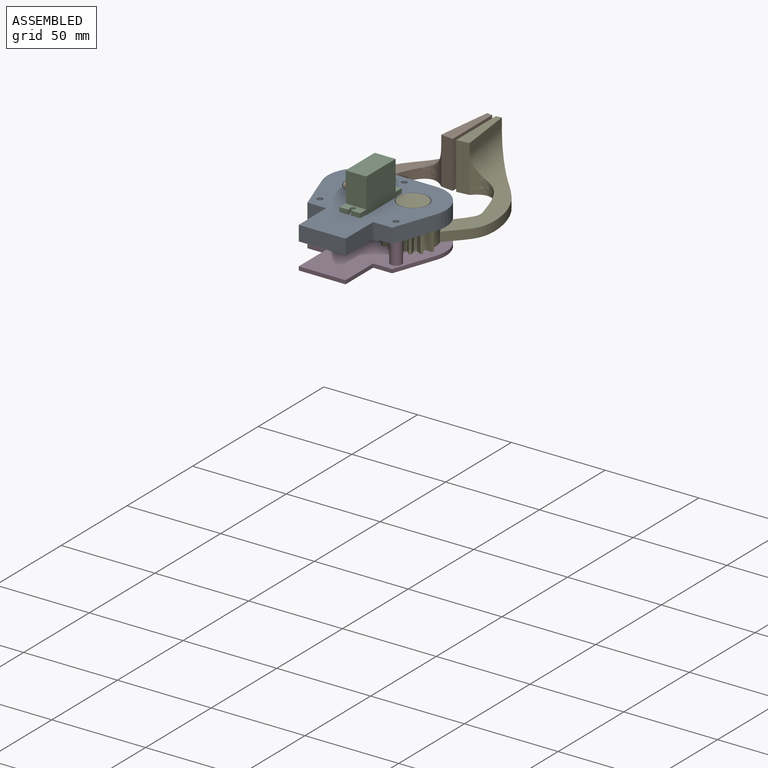
[diagram: assembled view]
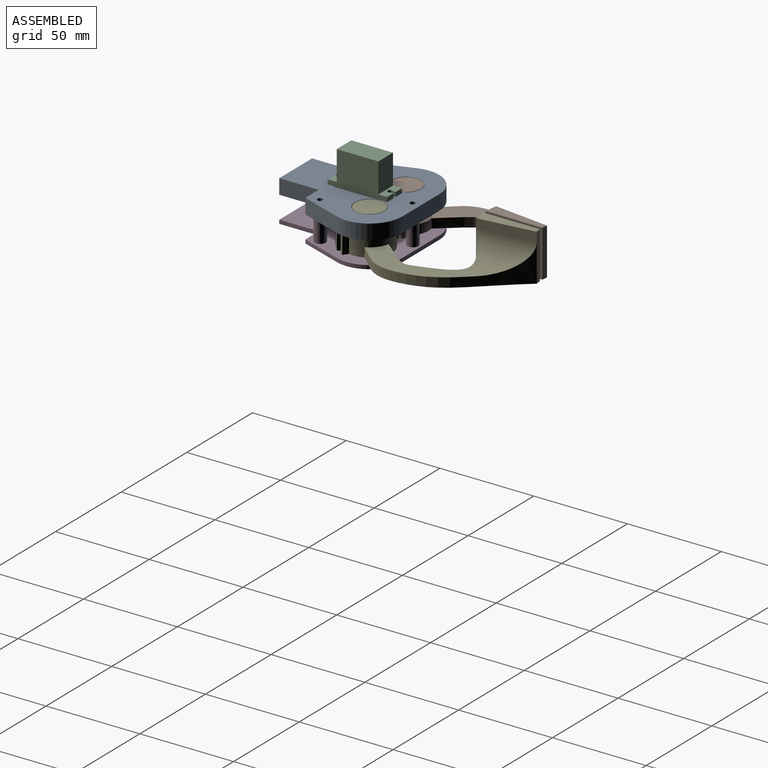
[diagram: assembled view, second angle]
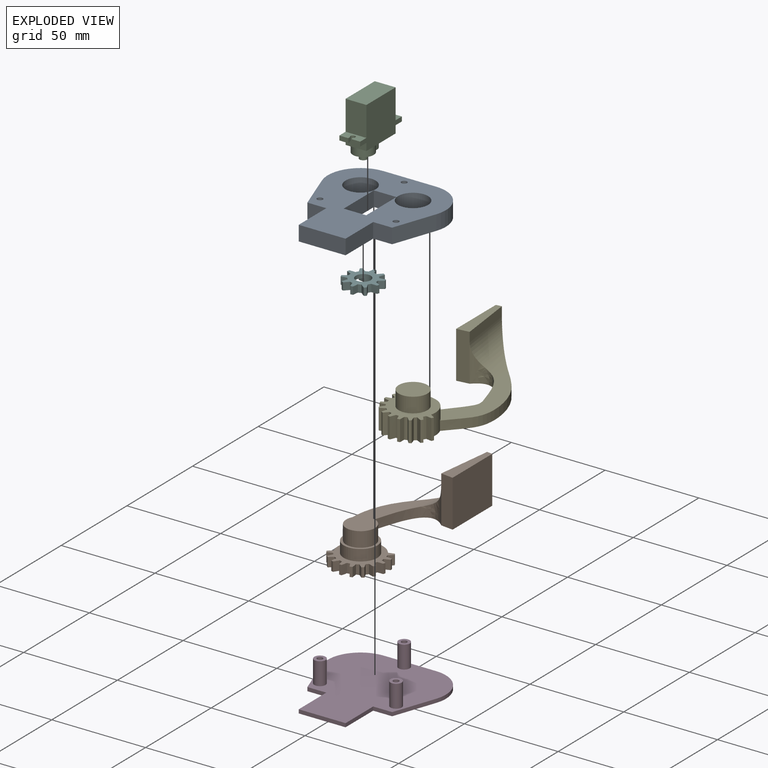
[diagram: exploded view]
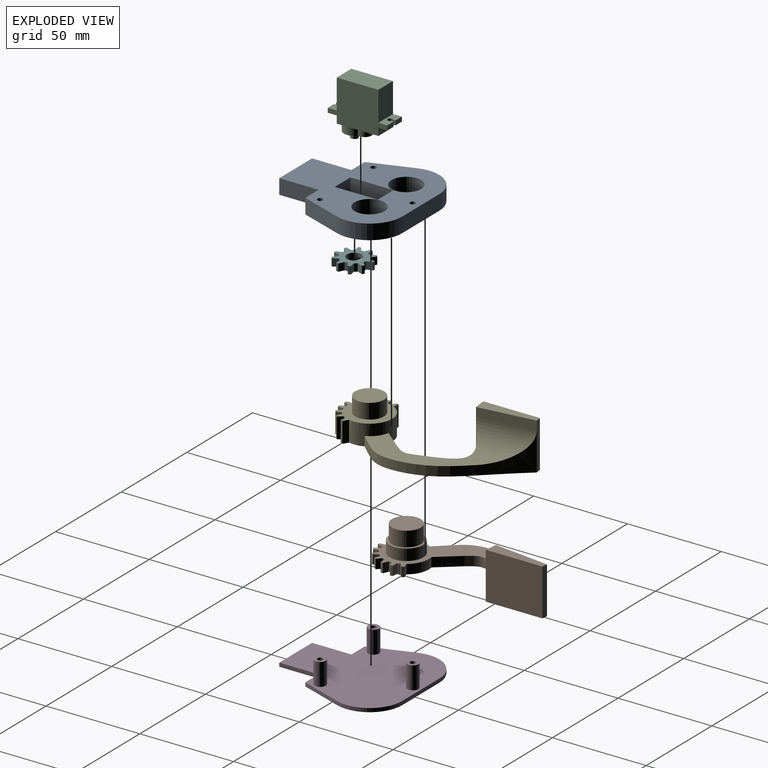
[diagram: exploded view, second angle]
ASSEMBLY  parts=6 mates=5
PART A: 21 faces, bbox 63x66.7x8 mm
  f0: plane 12x8mm, normal (0,1,0), area 96mm2, adj f1,f14,f19,f20
  f1: plane 23x8mm, normal (1,0,0), area 184mm2, adj f0,f2,f19,f20
  f2: plane 12x8mm, normal (0,-1,0), area 96mm2, adj f1,f14,f19,f20
  f3: cylinder r=17.5mm len=23.31mm, axis (0,0,-1), area 267.3mm2, adj f4,f17,f19,f20
  f4: plane 28x8mm, normal (0,1,0), area 224mm2, adj f3,f5,f19,f20
  f5: cylinder r=17.5mm len=23.31mm, axis (0,0,-1), area 267.3mm2, adj f4,f6,f19,f20
  f6: plane 22.43x8mm, normal (-0.94,-0.33,0), area 190.3mm2, adj f5,f7,f19,f20
  f7: plane 10.1x8mm, normal (0,-1,0), area 80.8mm2, adj f6,f8,f19,f20
  f8: plane 21x8mm, normal (-1,0,0), area 168mm2, adj f7,f9,f19,f20
  f9: plane 25x8mm, normal (0,-1,0), area 200mm2, adj f8,f10,f19,f20
  f10: plane 21x8mm, normal (1,0,0), area 168mm2, adj f9,f11,f19,f20
  f11: plane 10.1x8mm, normal (0,-1,0), area 80.8mm2, adj f10,f17,f19,f20
  f12: cylinder r=1.5mm len=8mm, axis (0,0,-1), area 75.4mm2, adj f19,f20
  f13: cylinder r=1.5mm len=8mm, axis (0,0,-1), area 75.4mm2, adj f19,f20
  f14: plane 23x8mm, normal (-1,0,0), area 184mm2, adj f0,f2,f19,f20
  f15: cylinder r=8mm len=16mm, axis (0,0,-1), area 402.1mm2, adj f19,f20
  f16: cylinder r=8mm len=16mm, axis (0,0,-1), area 402.1mm2, adj f19,f20
  f17: plane 22.43x8mm, normal (0.94,-0.33,0), area 190.3mm2, adj f3,f11,f19,f20
  f18: cylinder r=1.5mm len=8mm, axis (0,0,-1), area 75.4mm2, adj f19,f20
  f19: plane 66.75x63mm, normal (0,0,1), area 2350.7mm2, adj f0,f1,f2,f3,f4,f5,f6,f7
  f20: plane 66.75x63mm, normal (0,0,-1), area 2350.7mm2, adj f0,f1,f2,f3,f4,f5,f6,f7
PART B: 55 faces, bbox 43.4x97.7x25 mm
  f0: cylinder r=12mm len=12.64mm, axis (0,0,-1), area 69.1mm2, adj f12,f14,f15,f48
  f1: cylinder r=12mm len=9.49mm, axis (0,0,-1), area 49.1mm2, adj f14,f15,f39,f47
  f2: cylinder r=12mm len=5mm, axis (0,0,-1), area 7.5mm2, adj f14,f15,f36,f38
  f3: cylinder r=12mm len=5mm, axis (0,0,-1), area 7.5mm2, adj f14,f15,f33,f35
  f4: cylinder r=12mm len=5mm, axis (0,0,-1), area 7.5mm2, adj f14,f15,f30,f32
  f5: cylinder r=12mm len=5mm, axis (0,0,-1), area 7.5mm2, adj f14,f15,f27,f29
  f6: cylinder r=12mm len=5mm, axis (0,0,-1), area 7.5mm2, adj f14,f15,f24,f26
  f7: cylinder r=12mm len=5mm, axis (0,0,-1), area 7.5mm2, adj f14,f15,f21,f23
  f8: cylinder r=12mm len=5mm, axis (0,0,-1), area 7.5mm2, adj f14,f15,f18,f20
  f9: cylinder r=12mm len=5mm, axis (0,0,-1), area 7.5mm2, adj f14,f15,f17,f40
  f10: extruded ~5x2.34mm, area 15.7mm2, adj f11,f13,f14,f15
  f11: cylinder r=15mm len=5mm, axis (0,0,-1), area 6.7mm2, adj f10,f12,f14,f15
  f12: extruded ~5x2.87mm, area 15.7mm2, adj f0,f11,f14,f15
  f13: cylinder r=12mm len=5mm, axis (0,0,-1), area 7.5mm2, adj f10,f14,f15,f42
  f14: plane 76.49x43.07mm, normal (0,0,1), area 775.7mm2, adj f0,f1,f2,f3,f4,f5,f6,f7
  f15: plane 97.67x43.44mm, normal (0,0,-1), area 1445.1mm2, adj f0,f1,f2,f3,f4,f5,f6,f7
  f16: cylinder r=15mm len=5mm, axis (0,0,-1), area 6.7mm2, adj f14,f15,f17,f18
  f17: extruded ~5x3.01mm, area 15.7mm2, adj f9,f14,f15,f16
  f18: extruded ~5x3.1mm, area 15.7mm2, adj f8,f14,f15,f16
  f19: cylinder r=15mm len=5mm, axis (0,0,-1), area 6.7mm2, adj f14,f15,f20,f21
  f20: extruded ~5x2.53mm, area 15.7mm2, adj f8,f14,f15,f19
  f21: extruded ~5x3.07mm, area 15.7mm2, adj f7,f14,f15,f19
  f22: cylinder r=15mm len=5mm, axis (0,0,-1), area 6.7mm2, adj f14,f15,f23,f24
  f23: extruded ~5x2.6mm, area 15.7mm2, adj f7,f14,f15,f22
  f24: extruded ~5x2.66mm, area 15.7mm2, adj f6,f14,f15,f22
  f25: cylinder r=15mm len=5mm, axis (0,0,-1), area 6.7mm2, adj f14,f15,f26,f27
  f26: extruded ~5x3.04mm, area 15.7mm2, adj f6,f14,f15,f25
  f27: extruded ~5x2.46mm, area 15.7mm2, adj f5,f14,f15,f25
  f28: cylinder r=15mm len=5mm, axis (0,0,-1), area 6.7mm2, adj f14,f15,f29,f30
  f29: extruded ~5x3.11mm, area 15.7mm2, adj f5,f14,f15,f28
  f30: extruded ~5x2.97mm, area 15.7mm2, adj f4,f14,f15,f28
  f31: cylinder r=15mm len=5mm, axis (0,0,-1), area 6.7mm2, adj f14,f15,f32,f33
  f32: extruded ~5x2.81mm, area 15.7mm2, adj f4,f14,f15,f31
  f33: extruded ~5x3.13mm, area 15.7mm2, adj f3,f14,f15,f31
  f34: cylinder r=15mm len=5mm, axis (0,0,-1), area 6.7mm2, adj f14,f15,f35,f36
  f35: extruded ~5x2.26mm, area 15.7mm2, adj f3,f14,f15,f34
  f36: extruded ~5x2.91mm, area 15.7mm2, adj f2,f14,f15,f34
  f37: cylinder r=15mm len=5mm, axis (0,0,-1), area 6.7mm2, adj f14,f15,f38,f39
  f38: extruded ~5x2.87mm, area 15.7mm2, adj f2,f14,f15,f37
  f39: extruded ~5x2.34mm, area 15.7mm2, adj f1,f14,f15,f37
  f40: extruded ~5x2.76mm, area 15.7mm2, adj f9,f14,f15,f41
  f41: cylinder r=15mm len=5mm, axis (0,0,-1), area 6.7mm2, adj f14,f15,f40,f42
  f42: extruded ~5x3.12mm, area 15.7mm2, adj f13,f14,f15,f41
  f43: cylinder r=9mm len=18mm, axis (0,0,-1), area 339.3mm2, adj f14,f44
  f44: plane 18x18mm, normal (0,0,1), area 68.2mm2, adj f43,f46
  f45: plane 15.4x15.4mm, normal (0,0,1), area 186.3mm2, adj f46
  f46: cylinder r=7.7mm len=15.4mm, axis (0,0,-1), area 387mm2, adj f44,f45
  f47: extruded ~79.09x27.5mm, area 552.4mm2, adj f1,f14,f15,f51,f54
  f48: extruded ~44.07x20mm, area 364.9mm2, adj f0,f14,f15,f52,f54
  f49: plane 30x5mm, normal (-1,0,0), area 150mm2, adj f51,f52,f53,f54
  f50: plane 30x25mm, normal (0.99,0.12,0), area 755.6mm2, adj f15,f51,f52,f53
  f51: plane 25x3mm, normal (0,1,0), area 75mm2, adj f15,f47,f49,f50,f53
  f52: plane 25x6.68mm, normal (0,-1,0), area 167.1mm2, adj f15,f48,f49,f50,f53
  f53: plane 30x6.68mm, normal (0,0,1), area 145.3mm2, adj f49,f50,f51,f52
  f54: cylinder r=15mm len=36.33mm, axis (0,-1,0), area 493.9mm2, adj f14,f47,f48,f49
PART C: 31 faces, bbox 11.1x31.8x29.4 mm
  f0: plane 4.79x2.38mm, normal (0,1,0), area 11.4mm2, adj f2,f7,f17,f28
  f1: plane 4.79x2.38mm, normal (0,-1,0), area 11.4mm2, adj f12,f14,f17,f27
  f2: plane 11.11x4.76mm, normal (0,0,1), area 46mm2, adj f0,f8,f9,f16,f17,f28,f29,f30
  f3: plane 16.67x11.11mm, normal (0,0,1), area 113.8mm2, adj f9,f16,f17,f18,f19,f20,f21
  f4: plane 5.56x5.56mm, normal (0,0,1), area 6.6mm2, adj f11,f17,f19
  f5: plane 22.23x11.11mm, normal (0,0,-1), area 247mm2, adj f6,f15,f16,f17
  f6: plane 15.88x11.11mm, normal (0,1,0), area 176.4mm2, adj f5,f7,f16,f17
  f7: plane 11.11x4.76mm, normal (0,0,-1), area 46mm2, adj f0,f6,f8,f16,f17,f28,f29,f30
  f8: plane 4.79x2.38mm, normal (0,1,0), area 11.4mm2, adj f2,f7,f16,f30
  f9: plane 11.11x3.97mm, normal (0,1,0), area 44.1mm2, adj f2,f3,f16,f17
  f10: plane 5.56x5.56mm, normal (0,0,1), area 6.6mm2, adj f11,f16,f19
  f11: plane 11.11x3.97mm, normal (0,-1,0), area 44.1mm2, adj f4,f10,f12,f16,f17
  f12: plane 11.11x4.76mm, normal (0,0,1), area 46mm2, adj f1,f11,f13,f16,f17,f25,f26,f27
  f13: plane 4.79x2.38mm, normal (0,-1,0), area 11.4mm2, adj f12,f14,f16,f26
  f14: plane 11.11x4.76mm, normal (0,0,-1), area 46mm2, adj f1,f13,f15,f16,f17,f25,f26,f27
  f15: plane 15.88x11.11mm, normal (0,-1,0), area 176.4mm2, adj f5,f14,f16,f17
  f16: plane 31.75x22.23mm, normal (1,0,0), area 516.6mm2, adj f2,f3,f5,f6,f7,f8,f9,f10
  f17: plane 31.75x22.23mm, normal (-1,0,0), area 516.6mm2, adj f0,f1,f2,f3,f4,f5,f6,f7
  f18: plane 3.97x1.3mm, normal (-1,0,0), area 5.2mm2, adj f3,f19,f21,f22
  f19: cylinder r=5.56mm len=11.11mm, axis (0,0,-1), area 107.8mm2, adj f3,f4,f10,f18,f20,f22
  f20: plane 3.97x1.3mm, normal (1,0,0), area 5.2mm2, adj f3,f19,f21,f22
  f21: cylinder r=3.57mm len=7.14mm, axis (0,0,-1), area 44.5mm2, adj f3,f18,f20,f22
  f22: plane 14.68x11.11mm, normal (0,0,1), area 107.6mm2, adj f18,f19,f20,f21,f23
  f23: cylinder r=1.98mm len=3.97mm, axis (0,0,-1), area 39.6mm2, adj f22,f24
  f24: plane 3.97x3.97mm, normal (0,0,1), area 12.4mm2, adj f23
  f25: cylinder r=1.27mm len=2.55mm, axis (0,0,1), area 15.2mm2, adj f12,f14,f26,f27
  f26: plane 2.38x1.36mm, normal (-1,0,0), area 3.2mm2, adj f12,f13,f14,f25
  f27: plane 2.38x1.36mm, normal (1,0,0), area 3.2mm2, adj f1,f12,f14,f25
  f28: plane 2.38x1.36mm, normal (1,0,0), area 3.2mm2, adj f0,f2,f7,f29
  f29: cylinder r=1.27mm len=2.55mm, axis (0,0,1), area 15.2mm2, adj f2,f7,f28,f30
  f30: plane 2.38x1.36mm, normal (-1,0,0), area 3.2mm2, adj f2,f7,f8,f29
PART D: 21 faces, bbox 63x66.7x14 mm
  f0: plane 28x2mm, normal (0,1,0), area 56mm2, adj f1,f9,f10,f11
  f1: cylinder r=17.5mm len=23.31mm, axis (0,0,1), area 66.8mm2, adj f0,f2,f10,f11
  f2: plane 22.43x7.9mm, normal (-0.94,-0.33,0), area 47.6mm2, adj f1,f3,f10,f11
  f3: plane 10.1x2mm, normal (0,-1,0), area 20.2mm2, adj f2,f4,f10,f11
  f4: plane 21x2mm, normal (-1,0,0), area 42mm2, adj f3,f5,f10,f11
  f5: plane 25x2mm, normal (0,-1,0), area 50mm2, adj f4,f6,f10,f11
  f6: plane 21x2mm, normal (1,0,0), area 42mm2, adj f5,f7,f10,f11
  f7: plane 10.1x2mm, normal (0,-1,0), area 20.2mm2, adj f6,f8,f10,f11
  f8: plane 22.43x7.9mm, normal (0.94,-0.33,0), area 47.6mm2, adj f7,f9,f10,f11
  f9: cylinder r=17.5mm len=23.31mm, axis (0,0,1), area 66.8mm2, adj f0,f8,f10,f11
  f10: plane 66.75x63mm, normal (0,0,-1), area 3028.8mm2, adj f0,f1,f2,f3,f4,f5,f6,f7
  f11: plane 66.75x63mm, normal (0,0,1), area 2965.2mm2, adj f0,f1,f2,f3,f4,f5,f6,f7
  f12: cylinder r=1.5mm len=14mm, axis (0,0,1), area 131.9mm2, adj f10,f14
  f13: cylinder r=3mm len=12mm, axis (0,0,1), area 226.2mm2, adj f11,f14
  f14: plane 6x6mm, normal (0,0,1), area 21.2mm2, adj f12,f13
  f15: cylinder r=1.5mm len=14mm, axis (0,0,1), area 131.9mm2, adj f10,f17
  f16: cylinder r=3mm len=12mm, axis (0,0,1), area 226.2mm2, adj f11,f17
  f17: plane 6x6mm, normal (0,0,1), area 21.2mm2, adj f15,f16
  f18: cylinder r=1.5mm len=14mm, axis (0,0,1), area 131.9mm2, adj f10,f20
  f19: cylinder r=3mm len=12mm, axis (0,0,1), area 226.2mm2, adj f11,f20
  f20: plane 6x6mm, normal (0,0,1), area 21.2mm2, adj f18,f19
PART E: 53 faces, bbox 43.4x97.7x25 mm
  f0: cylinder r=12mm len=22.02mm, axis (0,0,-1), area 328.2mm2, adj f11,f13,f14,f19,f44,f45,f46
  f1: cylinder r=12mm len=11mm, axis (0,0,-1), area 16.6mm2, adj f13,f14,f20,f23
  f2: cylinder r=12mm len=11mm, axis (0,0,-1), area 16.6mm2, adj f13,f14,f22,f26
  f3: cylinder r=12mm len=11mm, axis (0,0,-1), area 16.6mm2, adj f13,f14,f25,f29
  f4: cylinder r=12mm len=11mm, axis (0,0,-1), area 16.6mm2, adj f13,f14,f28,f32
  f5: cylinder r=12mm len=11mm, axis (0,0,-1), area 16.6mm2, adj f13,f14,f31,f35
  f6: cylinder r=12mm len=11mm, axis (0,0,-1), area 16.6mm2, adj f13,f14,f34,f38
  f7: cylinder r=12mm len=11mm, axis (0,0,-1), area 16.6mm2, adj f13,f14,f37,f39
  f8: cylinder r=12mm len=11mm, axis (0,0,-1), area 16.6mm2, adj f13,f14,f17,f40
  f9: cylinder r=12mm len=11mm, axis (0,0,-1), area 16.6mm2, adj f10,f13,f14,f16
  f10: extruded ~11x2.42mm, area 34.4mm2, adj f9,f12,f13,f14
  f11: extruded ~11x3.03mm, area 34.4mm2, adj f0,f12,f13,f14
  f12: cylinder r=15mm len=11mm, axis (0,0,-1), area 14.8mm2, adj f10,f11,f13,f14
  f13: plane 28.7x27.04mm, normal (0,0,1), area 327.2mm2, adj f0,f1,f2,f3,f4,f5,f6,f7
  f14: plane 97.7x43.4mm, normal (0,0,-1), area 1445.1mm2, adj f0,f1,f2,f3,f4,f5,f6,f7
  f15: cylinder r=15mm len=11mm, axis (0,0,-1), area 14.8mm2, adj f13,f14,f16,f17
  f16: extruded ~11x3.12mm, area 34.4mm2, adj f9,f13,f14,f15
  f17: extruded ~11x2.96mm, area 34.4mm2, adj f8,f13,f14,f15
  f18: cylinder r=15mm len=11mm, axis (0,0,-1), area 14.8mm2, adj f13,f14,f19,f20
  f19: extruded ~11x2.42mm, area 34.4mm2, adj f0,f13,f14,f18
  f20: extruded ~11x3.03mm, area 34.4mm2, adj f1,f13,f14,f18
  f21: cylinder r=15mm len=11mm, axis (0,0,-1), area 14.8mm2, adj f13,f14,f22,f23
  f22: extruded ~11x2.57mm, area 34.4mm2, adj f2,f13,f14,f21
  f23: extruded ~11x2.69mm, area 34.4mm2, adj f1,f13,f14,f21
  f24: cylinder r=15mm len=11mm, axis (0,0,-1), area 14.8mm2, adj f13,f14,f25,f26
  f25: extruded ~11x2.56mm, area 34.4mm2, adj f3,f13,f14,f24
  f26: extruded ~11x3.08mm, area 34.4mm2, adj f2,f13,f14,f24
  f27: cylinder r=15mm len=11mm, axis (0,0,-1), area 14.8mm2, adj f13,f14,f28,f29
  f28: extruded ~11x3.02mm, area 34.4mm2, adj f4,f13,f14,f27
  f29: extruded ~11x3.09mm, area 34.4mm2, adj f3,f13,f14,f27
  f30: cylinder r=15mm len=11mm, axis (0,0,-1), area 14.8mm2, adj f13,f14,f31,f32
  f31: extruded ~11x3.12mm, area 34.4mm2, adj f5,f13,f14,f30
  f32: extruded ~11x2.73mm, area 34.4mm2, adj f4,f13,f14,f30
  f33: cylinder r=15mm len=11mm, axis (0,0,-1), area 14.8mm2, adj f13,f14,f34,f35
  f34: extruded ~11x2.84mm, area 34.4mm2, adj f6,f13,f14,f33
  f35: extruded ~11x2.37mm, area 34.4mm2, adj f5,f13,f14,f33
  f36: cylinder r=15mm len=11mm, axis (0,0,-1), area 14.8mm2, adj f13,f14,f37,f38
  f37: extruded ~11x2.22mm, area 34.4mm2, adj f7,f13,f14,f36
  f38: extruded ~11x2.93mm, area 34.4mm2, adj f6,f13,f14,f36
  f39: extruded ~11x3.13mm, area 34.4mm2, adj f7,f13,f14,f41
  f40: extruded ~11x2.83mm, area 34.4mm2, adj f8,f13,f14,f41
  f41: cylinder r=15mm len=11mm, axis (0,0,-1), area 14.8mm2, adj f13,f14,f39,f40
  f42: cylinder r=7.7mm len=15.4mm, axis (0,0,-1), area 387mm2, adj f13,f43
  f43: plane 15.4x15.4mm, normal (0,0,1), area 186.3mm2, adj f42
  f44: extruded ~44.07x20mm, area 365mm2, adj f0,f14,f46,f48,f52
  f45: extruded ~79.09x27.5mm, area 552.4mm2, adj f0,f14,f46,f49,f52
  f46: plane 58.43x24.66mm, normal (0,0,1), area 516.6mm2, adj f0,f44,f45,f52
  f47: plane 30x5mm, normal (-1,0,0), area 150mm2, adj f48,f49,f51,f52
  f48: plane 25x6.68mm, normal (0,1,0), area 167.1mm2, adj f14,f44,f47,f50,f51
  f49: plane 25x3mm, normal (0,-1,0), area 75mm2, adj f14,f45,f47,f50,f51
  f50: plane 30x25mm, normal (0.99,-0.12,0), area 755.6mm2, adj f14,f48,f49,f51
  f51: plane 30x6.68mm, normal (0,0,1), area 145.3mm2, adj f47,f48,f49,f50
  f52: cylinder r=15mm len=36.33mm, axis (0,-1,0), area 494mm2, adj f44,f45,f46,f47
PART F: 46 faces, bbox 19.5x20x4 mm
  f0: cylinder r=7mm len=4mm, axis (0,0,-1), area 3.5mm2, adj f2,f5,f18,f38,f44,f45
  f1: cylinder r=4mm len=8mm, axis (0,0,-1), area 87.4mm2, adj f2,f18,f43,f44,f45
  f2: plane 19.49x18.54mm, normal (0,0,1), area 141.3mm2, adj f0,f1,f6,f7,f8,f9,f10,f11
  f3: cylinder r=10mm len=2mm, axis (0,0,-1), area 2.7mm2, adj f4,f5,f18,f45
  f4: extruded ~3.11x2mm, area 6.4mm2, adj f3,f12,f18,f45
  f5: extruded ~3.11x2mm, area 6.4mm2, adj f0,f3,f18,f45
  f6: cylinder r=7mm len=4mm, axis (0,0,-1), area 6.6mm2, adj f2,f18,f21,f24
  f7: cylinder r=7mm len=4mm, axis (0,0,-1), area 6.6mm2, adj f2,f18,f23,f27
  f8: cylinder r=7mm len=4mm, axis (0,0,-1), area 6.6mm2, adj f2,f18,f26,f30
  f9: cylinder r=7mm len=4mm, axis (0,0,-1), area 6.6mm2, adj f2,f18,f29,f33
  f10: cylinder r=7mm len=4mm, axis (0,0,-1), area 6.6mm2, adj f2,f18,f32,f36
  f11: cylinder r=7mm len=4mm, axis (0,0,-1), area 6.6mm2, adj f2,f18,f35,f39
  f12: cylinder r=7mm len=4mm, axis (0,0,-1), area 3.5mm2, adj f2,f4,f18,f42,f43,f45
  f13: cylinder r=7mm len=4mm, axis (0,0,-1), area 6.6mm2, adj f2,f17,f18,f40
  f14: cylinder r=7mm len=4mm, axis (0,0,-1), area 6.6mm2, adj f2,f15,f18,f20
  f15: extruded ~4x2.75mm, area 12.8mm2, adj f2,f14,f16,f18
  f16: cylinder r=10mm len=4mm, axis (0,0,-1), area 5.4mm2, adj f2,f15,f17,f18
  f17: extruded ~4x3.17mm, area 12.8mm2, adj f2,f13,f16,f18
  f18: plane 20.04x19.49mm, normal (0,0,-1), area 165.8mm2, adj f0,f1,f3,f4,f5,f6,f7,f8
  f19: cylinder r=10mm len=4mm, axis (0,0,-1), area 5.4mm2, adj f2,f18,f20,f21
  f20: extruded ~4x2.75mm, area 12.8mm2, adj f2,f14,f18,f19
  f21: extruded ~4x3.17mm, area 12.8mm2, adj f2,f6,f18,f19
  f22: cylinder r=10mm len=4mm, axis (0,0,-1), area 5.4mm2, adj f2,f18,f23,f24
  f23: extruded ~4x2.39mm, area 12.8mm2, adj f2,f7,f18,f22
  f24: extruded ~4x2.92mm, area 12.8mm2, adj f2,f6,f18,f22
  f25: cylinder r=10mm len=4mm, axis (0,0,-1), area 5.4mm2, adj f2,f18,f26,f27
  f26: extruded ~4x3.11mm, area 12.8mm2, adj f2,f8,f18,f25
  f27: extruded ~4x3.11mm, area 12.8mm2, adj f2,f7,f18,f25
  f28: cylinder r=10mm len=4mm, axis (0,0,-1), area 5.4mm2, adj f2,f18,f29,f30
  f29: extruded ~4x2.92mm, area 12.8mm2, adj f2,f9,f18,f28
  f30: extruded ~4x2.39mm, area 12.8mm2, adj f2,f8,f18,f28
  f31: cylinder r=10mm len=4mm, axis (0,0,-1), area 5.4mm2, adj f2,f18,f32,f33
  f32: extruded ~4x2.75mm, area 12.8mm2, adj f2,f10,f18,f31
  f33: extruded ~4x3.17mm, area 12.8mm2, adj f2,f9,f18,f31
  f34: cylinder r=10mm len=4mm, axis (0,0,-1), area 5.4mm2, adj f2,f18,f35,f36
  f35: extruded ~4x3.17mm, area 12.8mm2, adj f2,f11,f18,f34
  f36: extruded ~4x2.75mm, area 12.8mm2, adj f2,f10,f18,f34
  f37: cylinder r=10mm len=4mm, axis (0,0,-1), area 5.4mm2, adj f2,f18,f38,f39
  f38: extruded ~4x2.39mm, area 12.8mm2, adj f0,f2,f18,f37
  f39: extruded ~4x2.92mm, area 12.8mm2, adj f2,f11,f18,f37
  f40: extruded ~4x2.92mm, area 12.8mm2, adj f2,f13,f18,f41
  f41: cylinder r=10mm len=4mm, axis (0,0,-1), area 5.4mm2, adj f2,f18,f40,f42
  f42: extruded ~4x2.39mm, area 12.8mm2, adj f2,f12,f18,f41
  f43: plane 3.68x2mm, normal (-1,-0.03,0), area 7.4mm2, adj f1,f2,f12,f45
  f44: plane 3.68x2mm, normal (1,-0.02,0), area 7.4mm2, adj f0,f1,f2,f45
  f45: plane 7.3x5.86mm, normal (0,0,1), area 24.6mm2, adj f0,f1,f3,f4,f5,f12,f43,f44
PLACE A t=(-12.5,-36.89,-26.26)mm
PLACE B rot(axis=(0,0,-1),7deg) t=(-14,12.36,-37.26)mm
PLACE C rot(axis=(0,1,0),180deg) t=(0,0,-11.11)mm
PLACE D t=(-12.5,-36.89,-26.26)mm
PLACE E rot(axis=(0,0,-1),173deg) t=(14,12.36,-37.26)mm
PLACE F rot(axis=(0.62,-0.79,0),180deg) t=(0,-5.56,-27.37)mm
MATE revolute F.f1 <-> C.f19  axis (0,0,-1) through (0,-5.56,-29.37)mm
MATE fastened D.f12 <-> A.f12  axis (0,0,1) through (0,25.6,-26.26)mm
MATE revolute B.f11 <-> A.f5  axis (0,0,1) through (-14,12.36,-18.26)mm
MATE revolute E.f12 <-> A.f3  axis (0,0,1) through (14,12.36,-18.26)mm
MATE fastened A.f2 <-> C.f9  axis (0,-1,0) through (0,11.11,-18.26)mm
